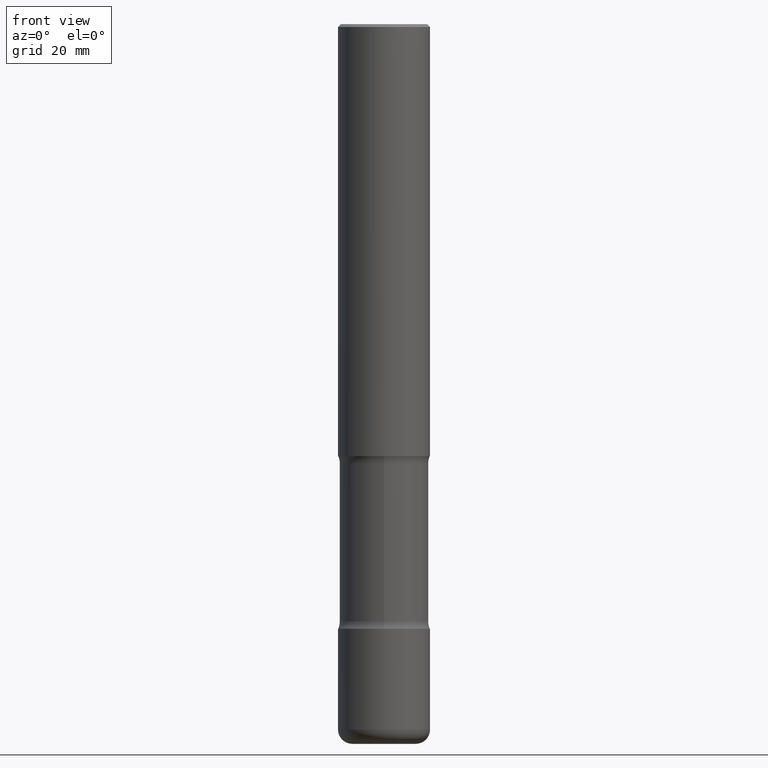
[diagram: clean part render]
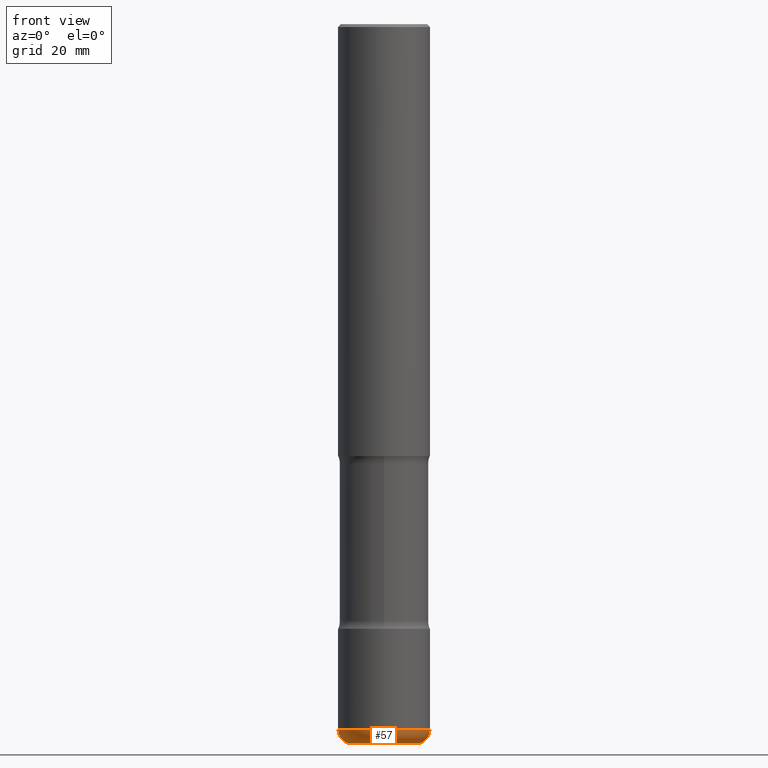
[diagram: same view with one face highlighted and labeled with its STEP entity id]
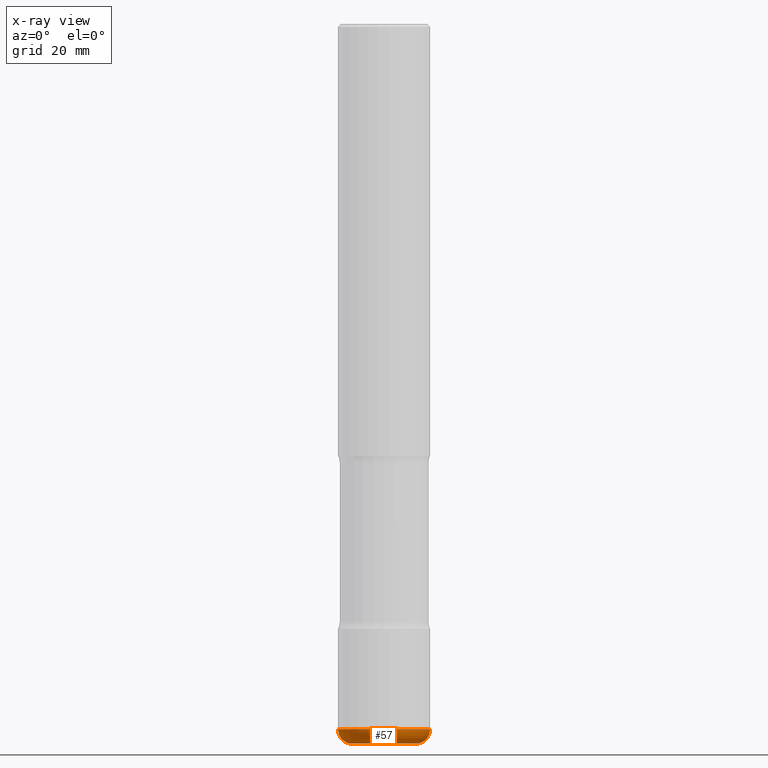
[diagram: x-ray of the same camera — body ghosted, the highlighted face saturated]
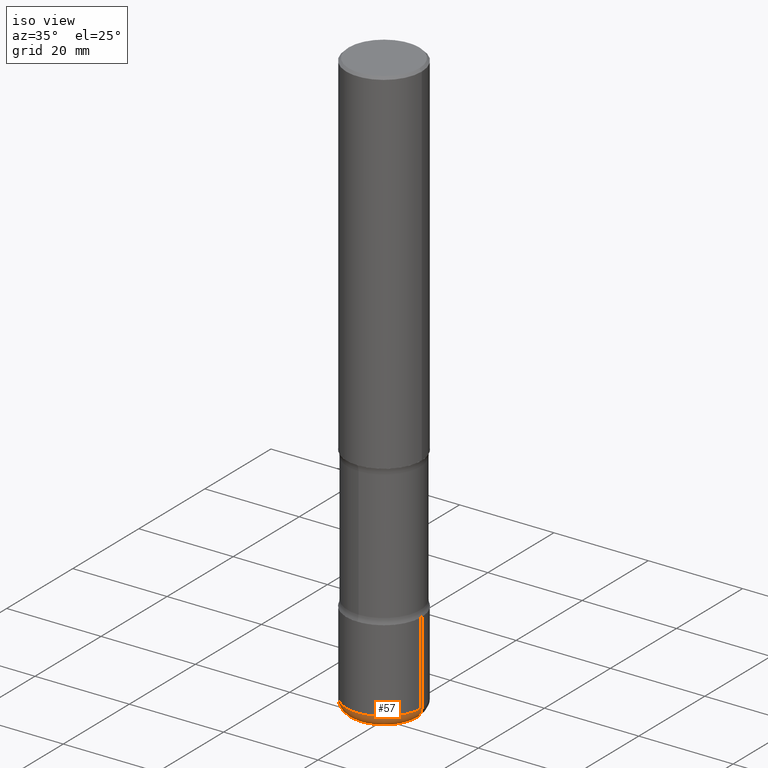
[diagram: same view with one face highlighted and labeled with its STEP entity id]
A machine part, front view. The second image highlights one B-rep face of the part: STEP entity #57.
The next image is the same camera in x-ray: the body ghosted, the highlighted face saturated — about 0% of this face is hidden behind the body in this view.
A second angle (iso view) of the same face is appended — the face is thin or edge-on in the first view.
In plain terms, the highlighted toroidal blend (fillet) surface has major radius 5.5004 mm and minor (blend) radius 2.4994 mm.
Its self-contained STEP definition (entity closure, byte-faithful):
#22 = ORIENTED_EDGE ( 'NONE', *, *, #548, .T. ) ;
#23 = AXIS2_PLACEMENT_3D ( 'NONE', #468, #126, #419 ) ;
#25 = DIRECTION ( 'NONE',  ( 1.000000000000000000, -6.982962677686251722E-15, 0.000000000000000000 ) ) ;
#42 = CARTESIAN_POINT ( 'NONE',  ( 1.179425150535029431E-28, -1.683906534910660571E-14, -4.822899999999999743 ) ) ;
#47 = CARTESIAN_POINT ( 'NONE',  ( -0.2165500000000001590, -1.530038505481810704E-14, -4.822899999999999743 ) ) ;
#56 = VERTEX_POINT ( 'NONE', #507 ) ;
#57 = ADVANCED_FACE ( 'NONE', ( #132 ), #470, .T. ) ;
#64 = VERTEX_POINT ( 'NONE', #288 ) ;
#73 = CARTESIAN_POINT ( 'NONE',  ( 1.179425150535029431E-28, -1.683906534910660571E-14, -4.822899999999999743 ) ) ;
#74 = DIRECTION ( 'NONE',  ( 1.000000000000000000, -6.982962677686269866E-15, 4.883557194083114022E-29 ) ) ;
#91 = CIRCLE ( 'NONE', #23, 0.2165500000000000758 ) ;
#98 = DIRECTION ( 'NONE',  ( 7.105427357601001859E-15, 1.000000000000000000, -3.491481338843145583E-15 ) ) ;
#108 = VERTEX_POINT ( 'NONE', #129 ) ;
#118 = CIRCLE ( 'NONE', #445, 0.09840000000000014013 ) ;
#126 = DIRECTION ( 'NONE',  ( -2.445468806185136597E-29, 3.491481338843145583E-15, 1.000000000000000000 ) ) ;
#129 = CARTESIAN_POINT ( 'NONE',  ( -0.2165500000000000758, -1.512257891069522064E-14, -4.921299999999999564 ) ) ;
#132 = FACE_OUTER_BOUND ( 'NONE', #413, .T. ) ;
#198 = ORIENTED_EDGE ( 'NONE', *, *, #402, .F. ) ;
#206 = CARTESIAN_POINT ( 'NONE',  ( 0.2165500000000000758, -1.869478768070173264E-14, -4.921299999999999564 ) ) ;
#247 = DIRECTION ( 'NONE',  ( -2.445468806185136597E-29, 3.491481338843145583E-15, 1.000000000000000000 ) ) ;
#258 = EDGE_CURVE ( 'NONE', #108, #64, #449, .T. ) ;
#288 = CARTESIAN_POINT ( 'NONE',  ( -0.3149500000000002298, -1.460121100283016657E-14, -4.822899999999999743 ) ) ;
#303 = DIRECTION ( 'NONE',  ( -2.445468806185136597E-29, 3.491481338843145583E-15, 1.000000000000000000 ) ) ;
#368 = AXIS2_PLACEMENT_3D ( 'NONE', #47, #98, #393 ) ;
#378 = AXIS2_PLACEMENT_3D ( 'NONE', #42, #303, #74 ) ;
#393 = DIRECTION ( 'NONE',  ( -1.000000000000000000, 7.105427357601008170E-15, 0.000000000000000000 ) ) ;
#402 = EDGE_CURVE ( 'NONE', #64, #56, #520, .T. ) ;
#411 = CARTESIAN_POINT ( 'NONE',  ( 0.2165500000000001590, -1.835122591695956496E-14, -4.822899999999999743 ) ) ;
#413 = EDGE_LOOP ( 'NONE', ( #545, #448, #22, #198 ) ) ;
#419 = DIRECTION ( 'NONE',  ( 1.000000000000000000, -6.982962677686271444E-15, 0.000000000000000000 ) ) ;
#420 = DIRECTION ( 'NONE',  ( 1.000000000000000000, -6.982962677686272233E-15, 0.000000000000000000 ) ) ;
#437 = EDGE_CURVE ( 'NONE', #108, #496, #91, .T. ) ;
#445 = AXIS2_PLACEMENT_3D ( 'NONE', #411, #550, #25 ) ;
#448 = ORIENTED_EDGE ( 'NONE', *, *, #437, .T. ) ;
#449 = CIRCLE ( 'NONE', #368, 0.09840000000000014013 ) ;
#468 = CARTESIAN_POINT ( 'NONE',  ( 1.203488563587891146E-28, -1.718262711284877024E-14, -4.921299999999999564 ) ) ;
#470 = TOROIDAL_SURFACE ( 'NONE', #378, 0.2165500000000001590, 0.09840000000000012625 ) ;
#496 = VERTEX_POINT ( 'NONE', #206 ) ;
#507 = CARTESIAN_POINT ( 'NONE',  ( 0.3149500000000002298, -1.903834944444389400E-14, -4.822899999999999743 ) ) ;
#511 = AXIS2_PLACEMENT_3D ( 'NONE', #73, #247, #420 ) ;
#520 = CIRCLE ( 'NONE', #511, 0.3149500000000001743 ) ;
#545 = ORIENTED_EDGE ( 'NONE', *, *, #258, .F. ) ;
#548 = EDGE_CURVE ( 'NONE', #496, #56, #118, .T. ) ;
#550 = DIRECTION ( 'NONE',  ( -6.982962677686266711E-15, -1.000000000000000000, 3.491481338843145583E-15 ) ) ;